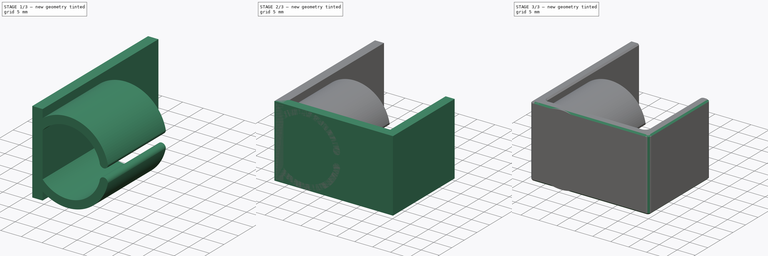
[diagram: build sequence overview — one tinted view per stage of 3, left to right]
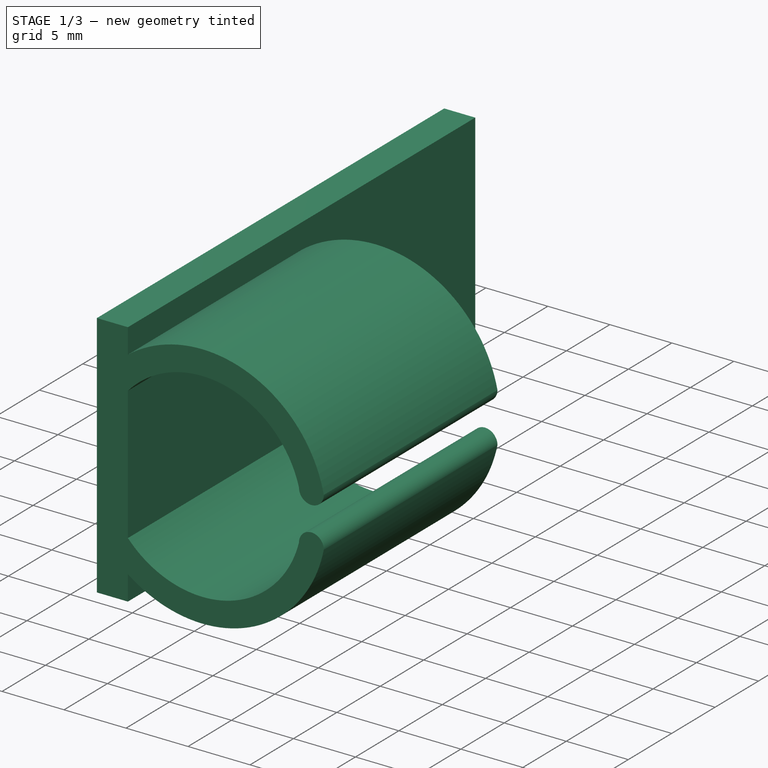
[diagram: stage 1 of 3 — iso view after this stage's code; geometry added in this stage tinted green]
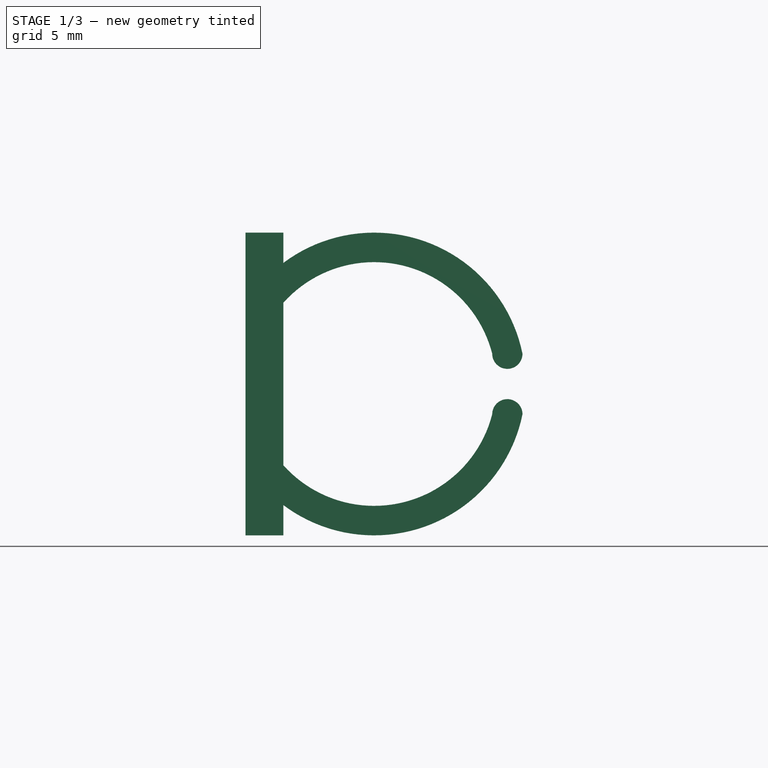
[diagram: stage 1 of 3 — front view after this stage's code; geometry added in this stage tinted green]
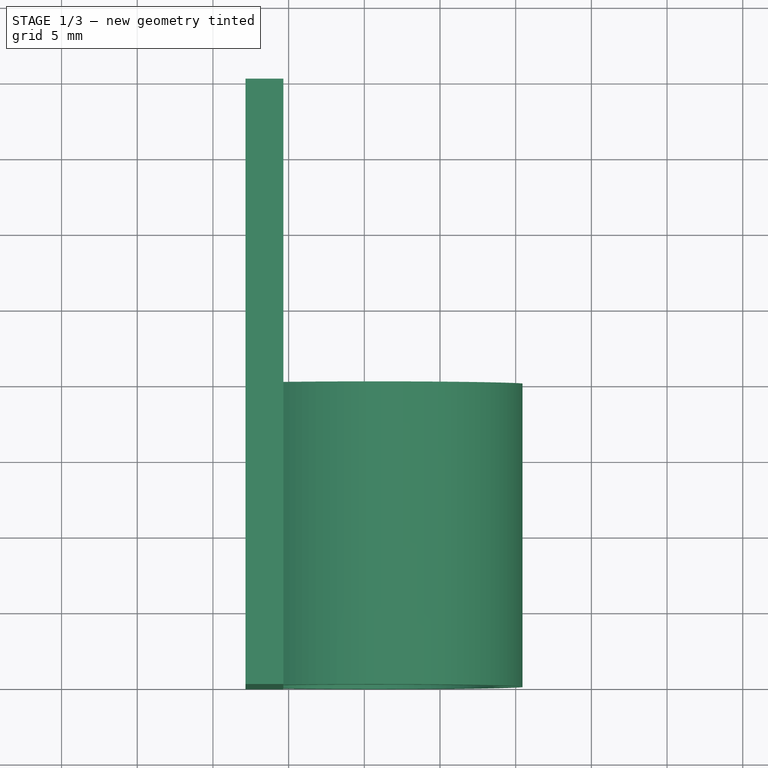
[diagram: stage 1 of 3 — top view after this stage's code; geometry added in this stage tinted green]
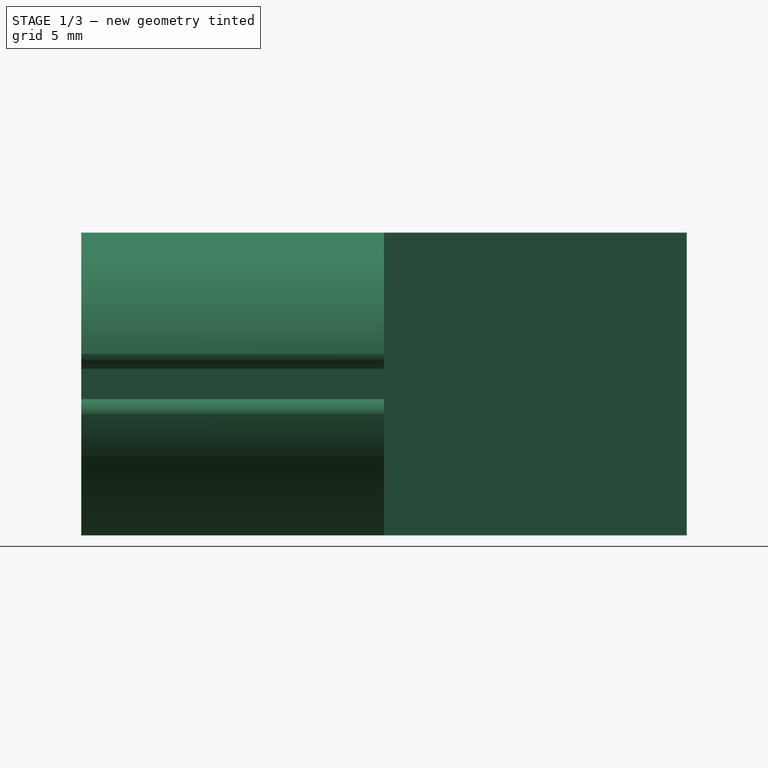
[diagram: stage 1 of 3 — right view after this stage's code; geometry added in this stage tinted green]
FCSTD DOCUMENT  (FreeCAD 0.22R36958 (Git))
Label: cable hooks and rings
License: All rights reserved
LicenseURL: http://en.wikipedia.org/wiki/All_rights_reserved
objects: Sketcher::SketchObject×3, PartDesign::Pad×3, PartDesign::Chamfer×2, PartDesign::Body×2, PartDesign::Fillet×1, Part::Feature×1
note: 18 computed .brp shape members not serialized (recipe doc carries the construction recipe); baked Part::Feature solids carry a one-line shape summary decoded from their .brp

FEATURE [PartDesign::Body] Body  label="hook"
  Group = -> [Sketch,Pad,Fillet,Chamfer]
  Origin = -> Origin
  Tip = -> Chamfer
FEATURE [Sketcher::SketchObject] Sketch001
  AttachmentSupport = -> [XY_Plane001]
  FullyConstrained = false
  MapMode = 5
  sketch-geometry (4):
    g0: LineSegment StartX=17.1519 StartY=44.9952 StartZ=0 EndX=17.1519 EndY=4.9952 EndZ=0
    g1: LineSegment StartX=19.6519 StartY=4.9952 StartZ=0 EndX=19.6519 EndY=44.9952 EndZ=0
    g2: LineSegment StartX=19.6519 StartY=44.9952 StartZ=0 EndX=17.1519 EndY=44.9952 EndZ=0
    g3: LineSegment StartX=19.6519 StartY=4.9952 StartZ=0 EndX=17.1519 EndY=4.9952 EndZ=0
  constraints (10):
    c: Vertical(g0)
    c: Vertical(g1)
    c: Coincident(g1,g2)
    c: Coincident(g2,g0)
    c: Horizontal(g2)
    c: DistanceX(g2,g2) = 2.5
    c: DistanceY(g0,g0) = 40
    c: Horizontal(g0,g1)
    c: Coincident(g3,g1)
    c: Coincident(g3,g0)
FEATURE [PartDesign::Pad] Pad001
  Direction = (0,0,1)
  Length = 20
  Length2 = 10
  Profile = -> Sketch001
  ReferenceAxis = -> Sketch001 [N_Axis]
  Suppressed = false
  Type = 0
FEATURE [Sketcher::SketchObject] Sketch002
  AttachmentSupport = -> [Pad001]
  ExternalGeometry = -> [Pad001]
  FullyConstrained = false
  MapMode = 5
  Placement = pos=(0,4.9952,0) rot=(1,0,0;1.5708rad)
  sketch-geometry (11):
    g0: GeomPoint X=19.6519 Y=10 Z=0
    g1: LineSegment StartX=19.6519 StartY=10 StartZ=0 EndX=35.4499 EndY=10 EndZ=0
    g2: ArcOfCircle CenterX=25.6519 CenterY=10 CenterZ=0 NormalX=0 NormalY=0 NormalZ=1 AngleXU=0 Radius=10 StartAngle=0.201358 EndAngle=2.2143
    g3: ArcOfCircle CenterX=25.6519 CenterY=10 CenterZ=0 NormalX=0 NormalY=0 NormalZ=1 AngleXU=0 Radius=10 StartAngle=4.06889 EndAngle=6.08183
    g4: ArcOfCircle CenterX=25.6519 CenterY=10 CenterZ=0 NormalX=0 NormalY=0 NormalZ=1 AngleXU=0 Radius=8.05035 StartAngle=3.87139 EndAngle=6.03212
    g5: ArcOfCircle CenterX=25.6519 CenterY=10 CenterZ=0 NormalX=0 NormalY=0 NormalZ=1 AngleXU=0 Radius=8.05035 StartAngle=0.251066 EndAngle=2.41179
    g6: GeomPoint X=33.4499 Y=10 Z=0
    g7: ArcOfCircle CenterX=34.4499 CenterY=12 CenterZ=0 NormalX=0 NormalY=0 NormalZ=1 AngleXU=0 Radius=1 StartAngle=3.14159 EndAngle=6.28319
    g8: ArcOfCircle CenterX=34.4499 CenterY=8 CenterZ=0 NormalX=0 NormalY=0 NormalZ=1 AngleXU=0 Radius=1 StartAngle=4e-16 EndAngle=3.14159
    g9: LineSegment StartX=19.6519 StartY=18 StartZ=0 EndX=19.6519 EndY=15.3673 EndZ=0
    g10: LineSegment StartX=19.6519 StartY=4.63268 StartZ=0 EndX=19.6519 EndY=2 EndZ=0
  constraints (32):
    c: Symmetric(g-4,g-4,g0)
    c: Coincident(g1,g0)
    c: Horizontal(g1)
    c: PointOnObject(g2,g-4)
    c: PointOnObject(g3,g-4)
    c: PointOnObject(g4,g-4)
    c: Coincident(g4,g3)
    c: Coincident(g2,g5)
    c: Equal(g5,g4)
    c: Equal(g2,g3)
    c: Vertical(g2,g3)
    c: Vertical(g3,g1)
    c: Vertical(g5,g4)
    c: PointOnObject(g6,g1)
    c: DistanceX(g6,g1) = 2
    c: Vertical(g4,g6)
    c: Symmetric(g4,g5,g0)
    c: Coincident(g7,g5)
    c: Coincident(g7,g2)
    c: Coincident(g8,g4)
    c: Coincident(g8,g3)
    c: Equal(g7,g8)
    c: Diameter(g3) = 20
    c: Horizontal(g4,g3)
    c: Horizontal(g8,g3)
    c: DistanceY(g8,g7) = 4
    c: PointOnObject(g3,g1)
    c: Coincident(g9,g2)
    c: Coincident(g9,g5)
    c: Coincident(g10,g4)
    c: Coincident(g10,g3)
    c: DistanceY(g-4,g3) = 2
FEATURE [PartDesign::Pad] Pad002
  BaseFeature = -> Pad001
  Direction = (0,-1,2e-16)
  Length = 20
  Length2 = 10
  Profile = -> Sketch002
  ReferenceAxis = -> Sketch002 [N_Axis]
  Refine = true
  Reversed = true
  Suppressed = false
  Type = 0
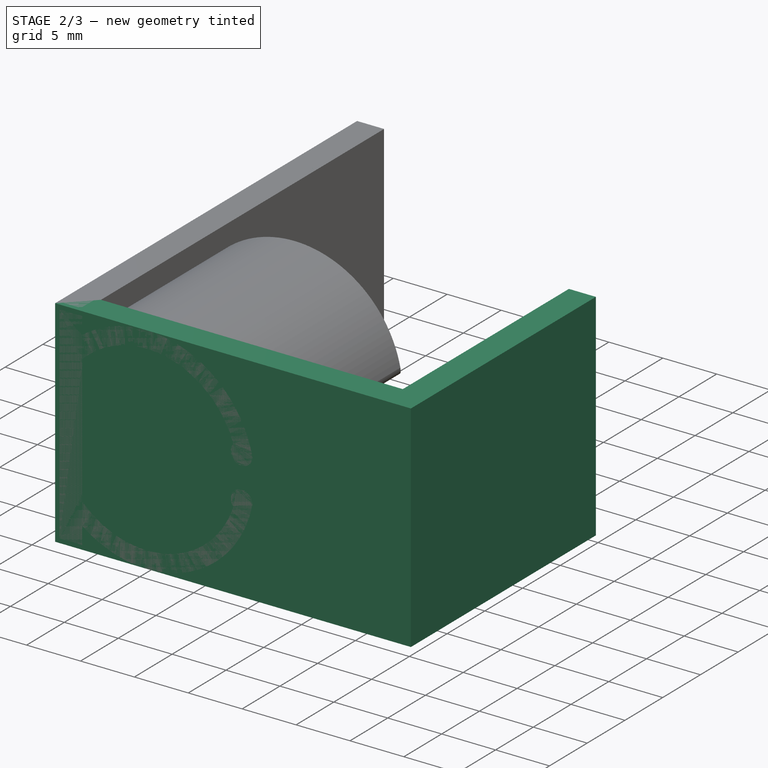
[diagram: stage 2 of 3 — iso view after this stage's code; geometry added in this stage tinted green]
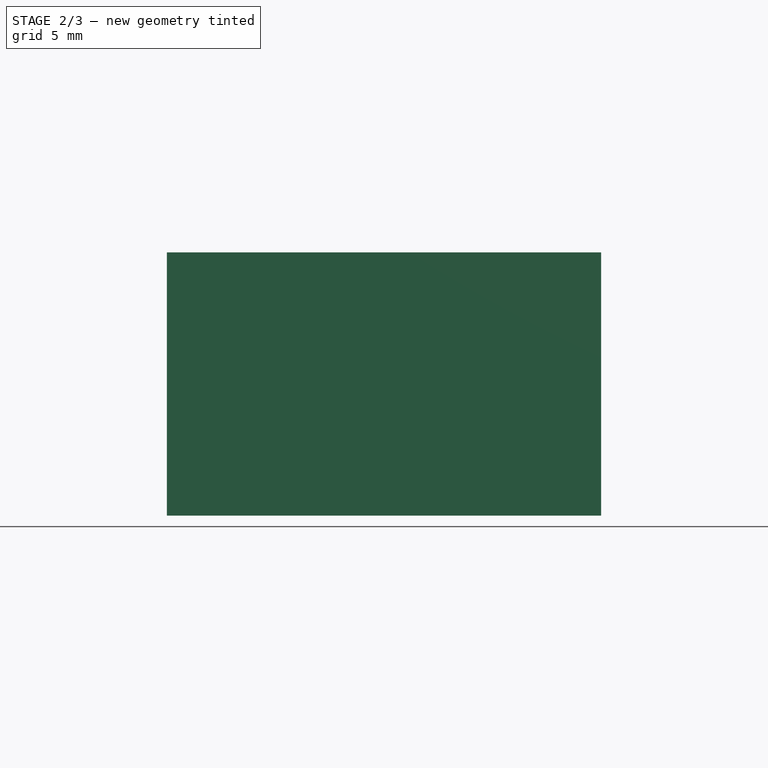
[diagram: stage 2 of 3 — front view after this stage's code; geometry added in this stage tinted green]
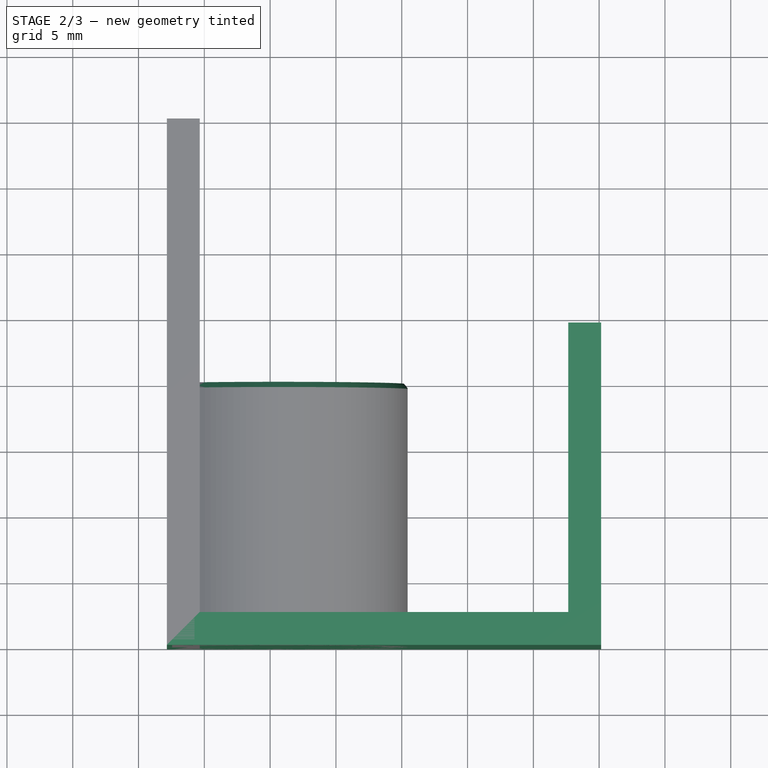
[diagram: stage 2 of 3 — top view after this stage's code; geometry added in this stage tinted green]
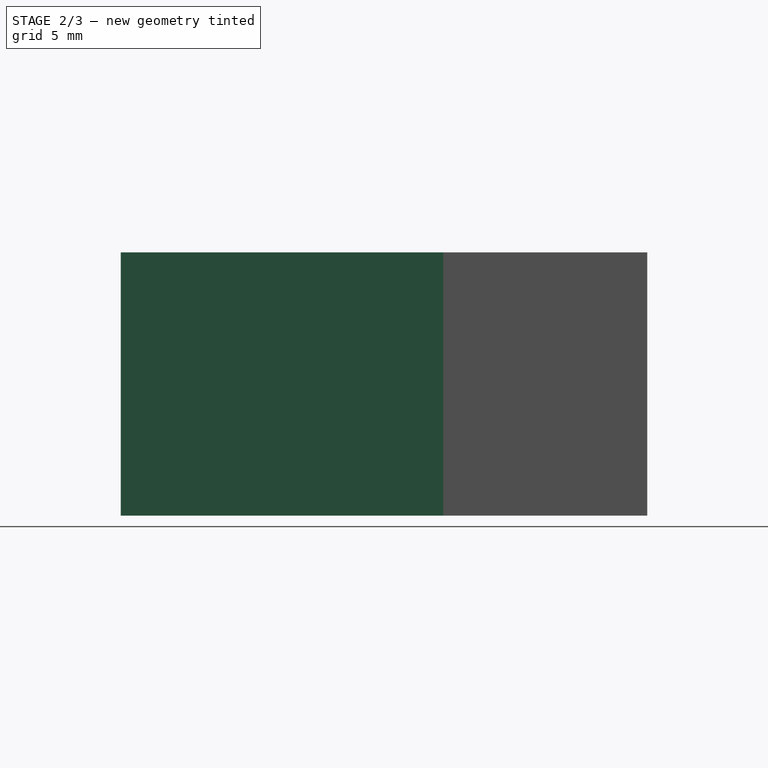
[diagram: stage 2 of 3 — right view after this stage's code; geometry added in this stage tinted green]
FEATURE [Sketcher::SketchObject] Sketch
  AttachmentSupport = -> [XY_Plane]
  FullyConstrained = false
  MapMode = 5
  sketch-geometry (8):
    g0: LineSegment StartX=17.1519 StartY=44.9952 StartZ=0 EndX=17.1519 EndY=4.9952 EndZ=0
    g1: LineSegment StartX=17.1519 StartY=4.9952 StartZ=0 EndX=50.1519 EndY=4.9952 EndZ=0
    g2: LineSegment StartX=50.1519 StartY=4.9952 StartZ=0 EndX=50.1519 EndY=29.4952 EndZ=0
    g3: LineSegment StartX=50.1519 StartY=29.4952 StartZ=0 EndX=47.6519 EndY=29.4952 EndZ=0
    g4: LineSegment StartX=47.6519 StartY=29.4952 StartZ=0 EndX=47.6519 EndY=7.4952 EndZ=0
    g5: LineSegment StartX=47.6519 StartY=7.4952 StartZ=0 EndX=19.6519 EndY=7.4952 EndZ=0
    g6: LineSegment StartX=19.6519 StartY=7.4952 StartZ=0 EndX=19.6519 EndY=44.9952 EndZ=0
    g7: LineSegment StartX=19.6519 StartY=44.9952 StartZ=0 EndX=17.1519 EndY=44.9952 EndZ=0
  constraints (22):
    c: Vertical(g0)
    c: Coincident(g0,g1)
    c: Horizontal(g1)
    c: Coincident(g1,g2)
    c: Vertical(g2)
    c: Coincident(g2,g3)
    c: Coincident(g3,g4)
    c: Coincident(g4,g5)
    c: Horizontal(g5)
    c: Coincident(g5,g6)
    c: Vertical(g6)
    c: Coincident(g6,g7)
    c: Coincident(g7,g0)
    c: Horizontal(g7)
    c: Horizontal(g3)
    c: Vertical(g4)
    c: DistanceY(g1,g4) = 2.5
    c: DistanceX(g3,g3) = 2.5
    c: DistanceX(g7,g7) = 2.5
    c: DistanceY(g0,g0) = 40
    c: DistanceX(g5,g5) = 28
    c: DistanceY(g4,g3) = 22
FEATURE [PartDesign::Pad] Pad
  Direction = (0,0,1)
  Length = 20
  Length2 = 10
  Profile = -> Sketch
  ReferenceAxis = -> Sketch [N_Axis]
  Suppressed = false
  Type = 0
FEATURE [PartDesign::Chamfer] Chamfer001
  Angle = 45
  Base = -> Pad002 [Face4,Face2,Face3,Face11,Edge22,Edge30,Edge24,Edge29,Edge26,Edge28]
  BaseFeature = -> Pad002
  ChamferType = 0
  FlipDirection = false
  Size = 0.4
  Size2 = 1
  SupportTransform = false
  Suppressed = false
  UseAllEdges = false
FEATURE [PartDesign::Body] Body001  label="ring"
  Group = -> [Sketch001,Pad001,Sketch002,Pad002,Chamfer001]
  Origin = -> Origin001
  Tip = -> Chamfer001
FEATURE [Part::Feature] Part__Feature  label="loop001"
  shape: bbox 18.41 x 40 x 20 mm, 37 faces (baked)
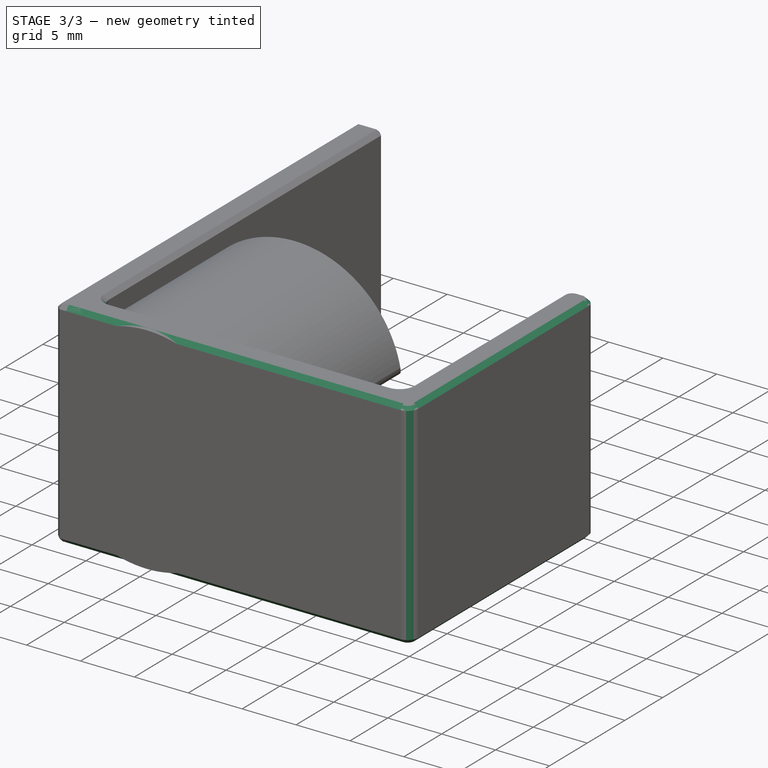
[diagram: stage 3 of 3 — iso view after this stage's code; geometry added in this stage tinted green]
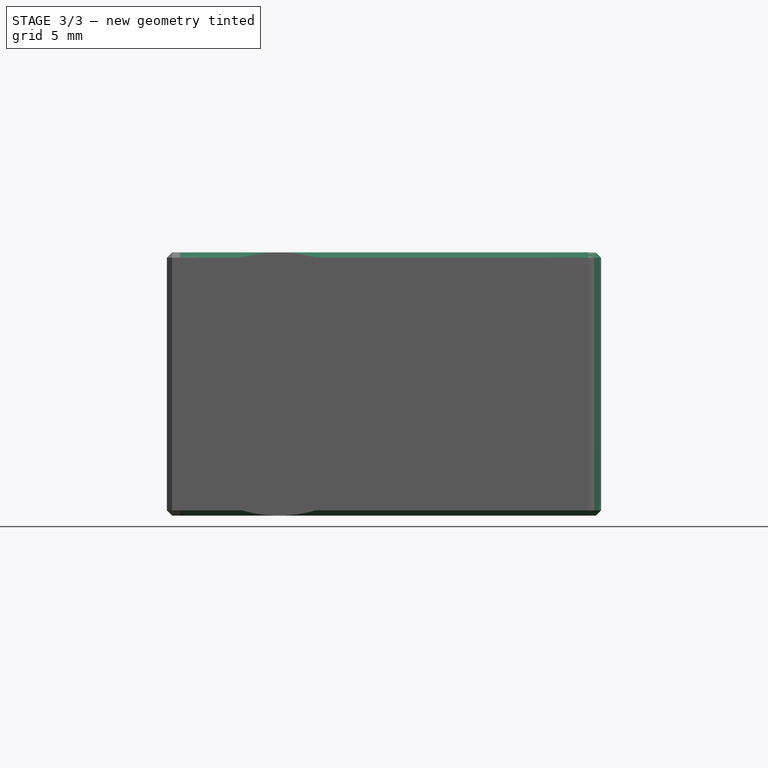
[diagram: stage 3 of 3 — front view after this stage's code; geometry added in this stage tinted green]
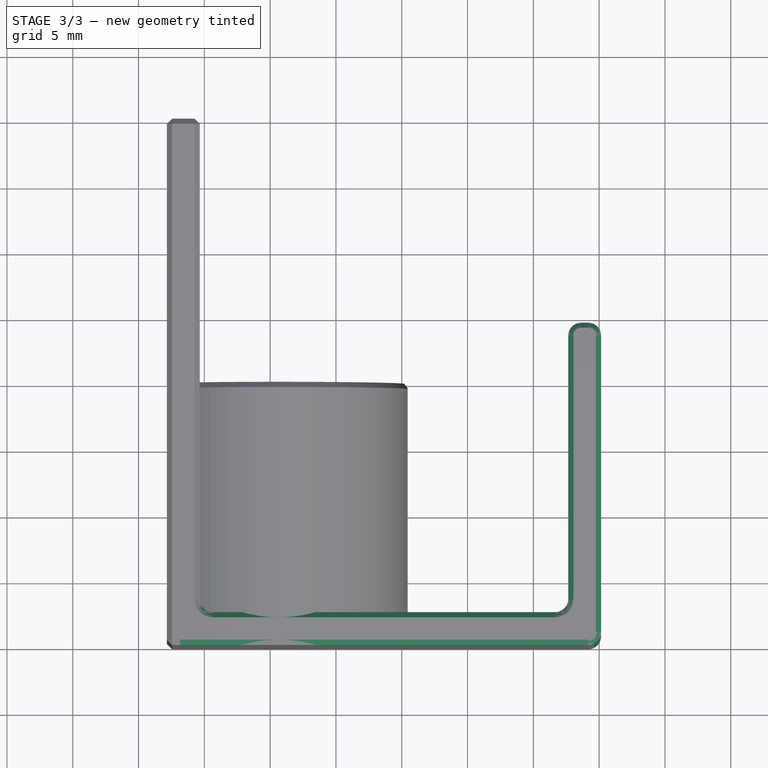
[diagram: stage 3 of 3 — top view after this stage's code; geometry added in this stage tinted green]
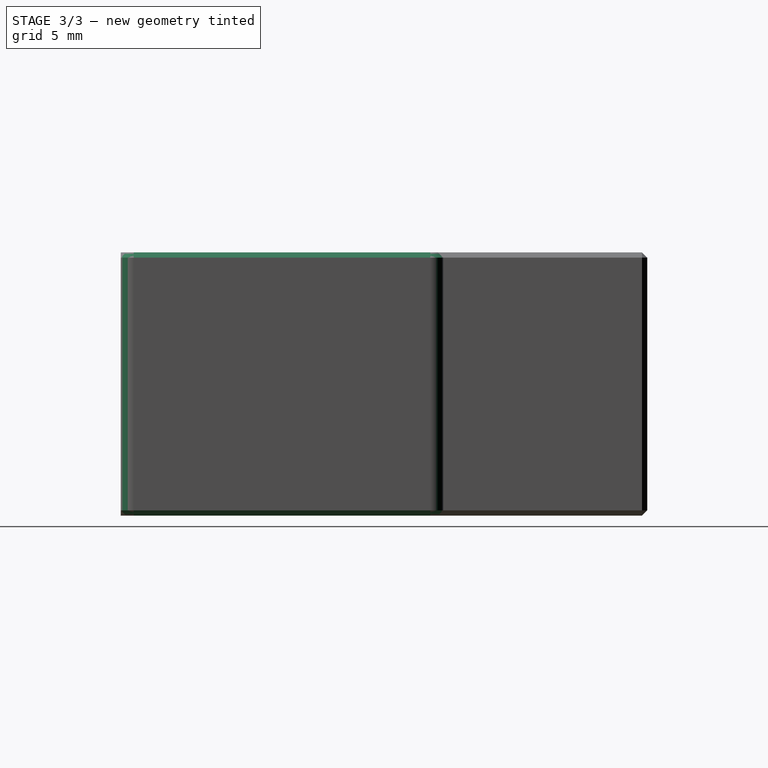
[diagram: stage 3 of 3 — right view after this stage's code; geometry added in this stage tinted green]
FEATURE [PartDesign::Fillet] Fillet
  Base = -> Pad [Edge5,Edge2,Edge17,Edge1,Edge20,Edge14,Edge11,Edge8]
  BaseFeature = -> Pad
  Radius = 1
  SupportTransform = false
  Suppressed = false
  UseAllEdges = false
FEATURE [PartDesign::Chamfer] Chamfer
  Angle = 45
  Base = -> Fillet [Face5,Face2]
  BaseFeature = -> Fillet
  ChamferType = 0
  FlipDirection = false
  Size = 0.4
  Size2 = 1
  SupportTransform = false
  Suppressed = false
  UseAllEdges = false
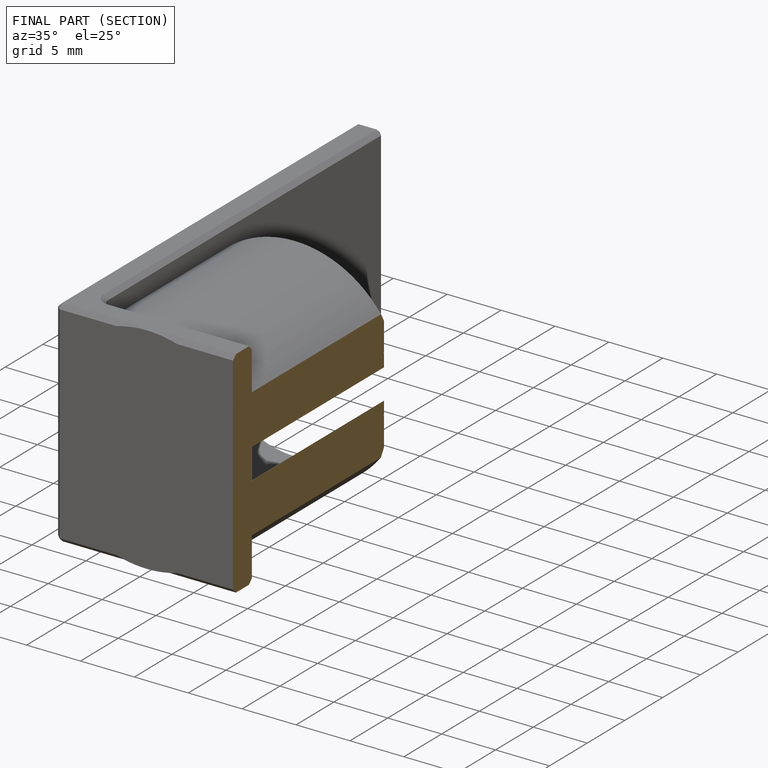
[diagram: finished part — half-section view (interior)]
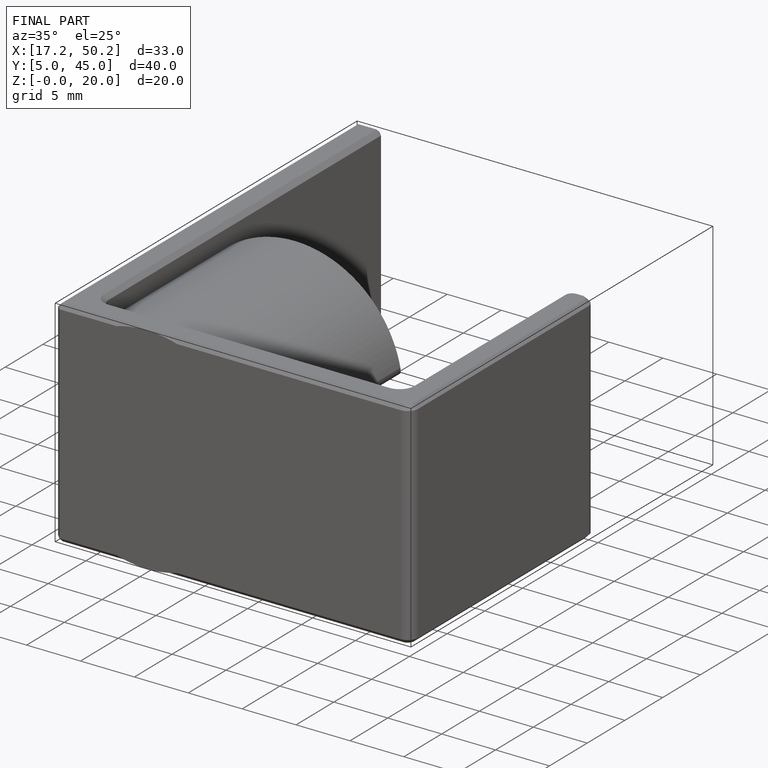
[diagram: finished part — iso view with bounding-box wireframe]
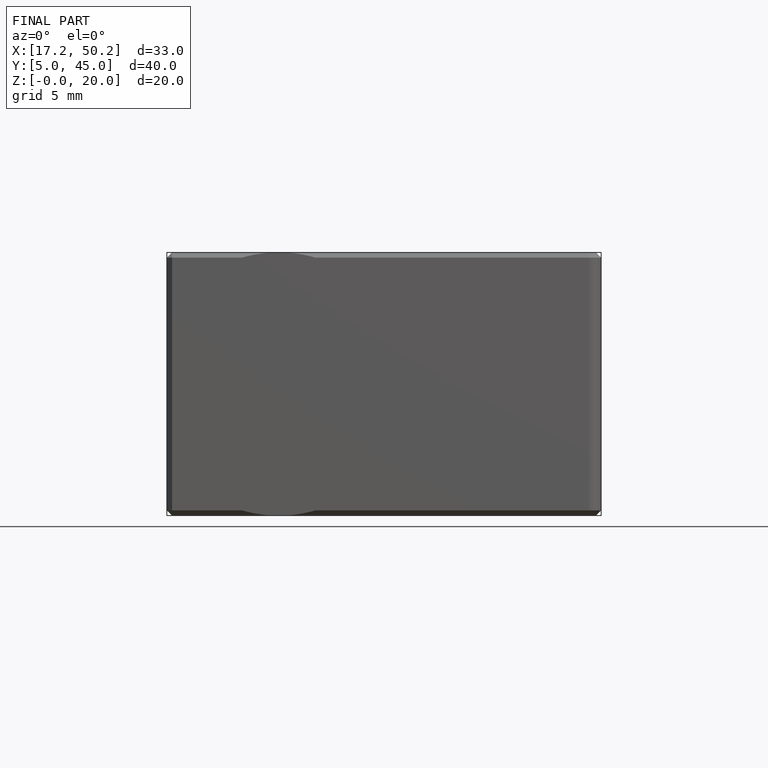
[diagram: finished part — front view with bounding-box wireframe]
